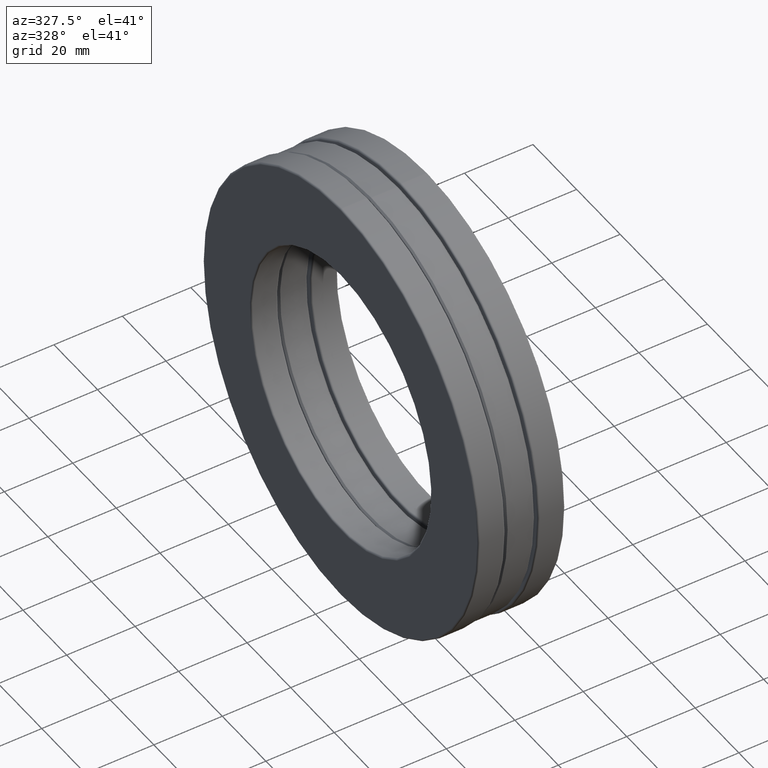
[diagram: clean part render]
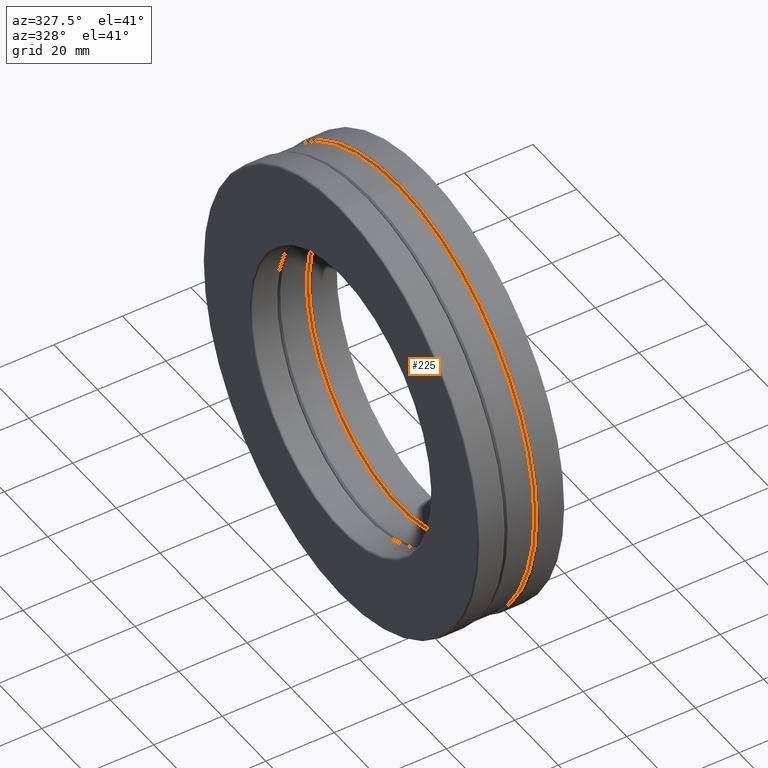
[diagram: same view with one face highlighted and labeled with its STEP entity id]
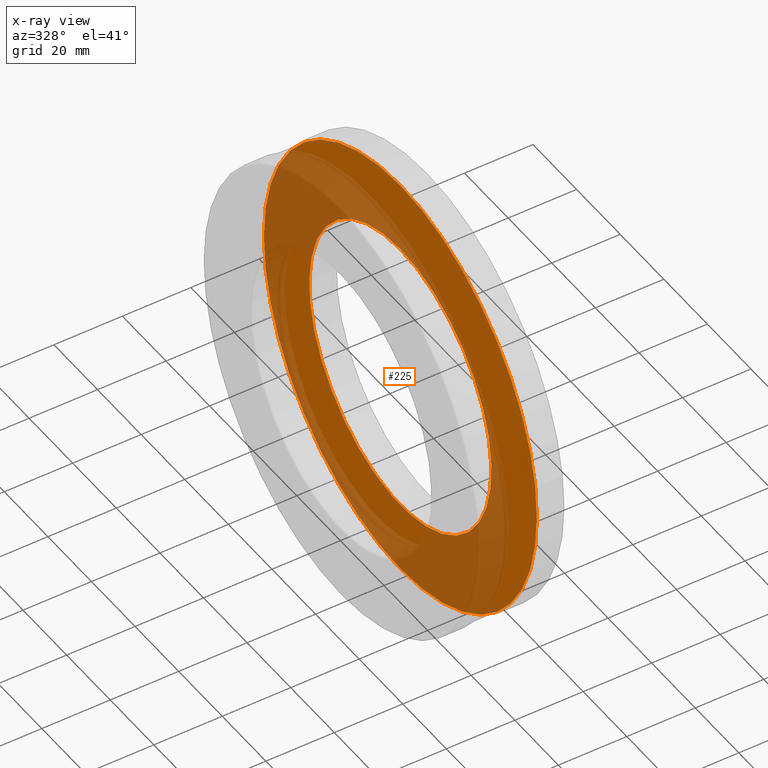
[diagram: x-ray of the same camera — body ghosted, the highlighted face saturated]
A machine part, auxiliary view. The second image highlights one B-rep face of the part: STEP entity #225.
The next image is the same camera in x-ray: the body ghosted, the highlighted face saturated — about 48% of this face is hidden behind the body in this view.
In plain terms, the highlighted planar face has unit normal (1, 0, 0).
Its self-contained STEP definition (entity closure, byte-faithful):
#24 = CARTESIAN_POINT ( 'NONE',  ( 0.1875000000000000300, 0.0000000000000000000, 0.0000000000000000000 ) ) ;
#26 = DIRECTION ( 'NONE',  ( 0.0000000000000000000, 0.0000000000000000000, 1.000000000000000000 ) ) ;
#85 = DIRECTION ( 'NONE',  ( 0.0000000000000000000, 0.0000000000000000000, -1.000000000000000000 ) ) ;
#105 = ORIENTED_EDGE ( 'NONE', *, *, #243, .F. ) ;
#144 = CARTESIAN_POINT ( 'NONE',  ( 0.1875000000000000300, 0.0000000000000000000, 1.645000000000000000 ) ) ;
#225 = ADVANCED_FACE ( 'NONE', ( #232, #1262 ), #1312, .F. ) ;
#232 = FACE_BOUND ( 'NONE', #1186, .T. ) ;
#243 = EDGE_CURVE ( 'NONE', #352, #352, #1123, .T. ) ;
#255 = CARTESIAN_POINT ( 'NONE',  ( 0.1875000000000000300, 0.0000000000000000000, 2.464375000000000000 ) ) ;
#352 = VERTEX_POINT ( 'NONE', #144 ) ;
#400 = VERTEX_POINT ( 'NONE', #255 ) ;
#454 = AXIS2_PLACEMENT_3D ( 'NONE', #647, #538, #85 ) ;
#538 = DIRECTION ( 'NONE',  ( 1.000000000000000000, 0.0000000000000000000, 0.0000000000000000000 ) ) ;
#647 = CARTESIAN_POINT ( 'NONE',  ( 0.1875000000000000300, 0.0000000000000000000, 0.0000000000000000000 ) ) ;
#700 = AXIS2_PLACEMENT_3D ( 'NONE', #24, #1362, #26 ) ;
#818 = CIRCLE ( 'NONE', #700, 2.464375000000000000 ) ;
#874 = EDGE_LOOP ( 'NONE', ( #1045 ) ) ;
#889 = DIRECTION ( 'NONE',  ( 0.0000000000000000000, 0.0000000000000000000, 1.000000000000000000 ) ) ;
#1045 = ORIENTED_EDGE ( 'NONE', *, *, #1458, .T. ) ;
#1103 = CARTESIAN_POINT ( 'NONE',  ( 0.1875000000000000300, 0.0000000000000000000, 0.0000000000000000000 ) ) ;
#1123 = CIRCLE ( 'NONE', #1451, 1.645000000000000000 ) ;
#1186 = EDGE_LOOP ( 'NONE', ( #105 ) ) ;
#1262 = FACE_OUTER_BOUND ( 'NONE', #874, .T. ) ;
#1312 = PLANE ( 'NONE',  #454 ) ;
#1324 = DIRECTION ( 'NONE',  ( -1.000000000000000000, -0.0000000000000000000, -0.0000000000000000000 ) ) ;
#1362 = DIRECTION ( 'NONE',  ( -1.000000000000000000, -0.0000000000000000000, -0.0000000000000000000 ) ) ;
#1451 = AXIS2_PLACEMENT_3D ( 'NONE', #1103, #1324, #889 ) ;
#1458 = EDGE_CURVE ( 'NONE', #400, #400, #818, .T. ) ;